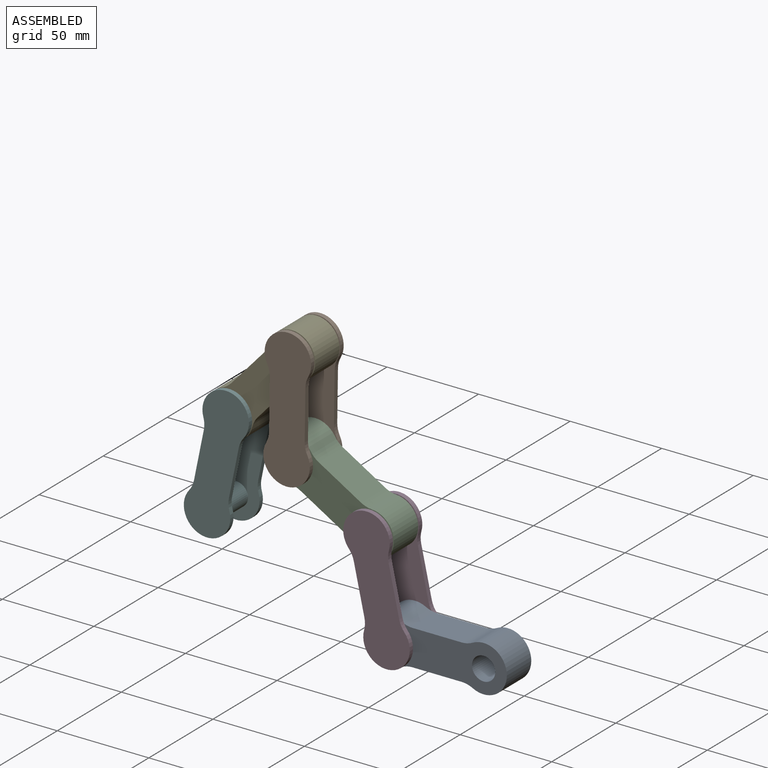
[diagram: assembled view]
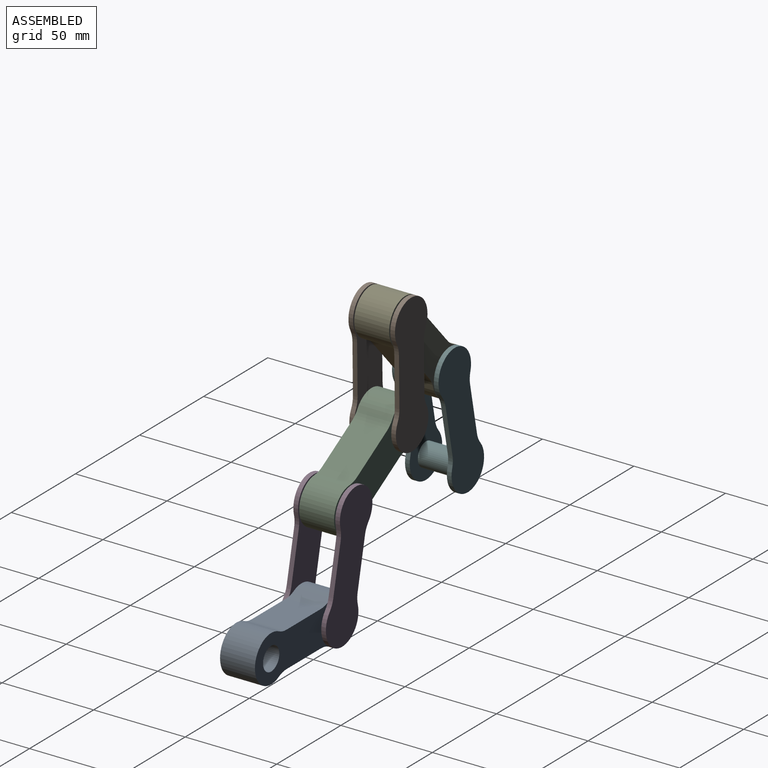
[diagram: assembled view, second angle]
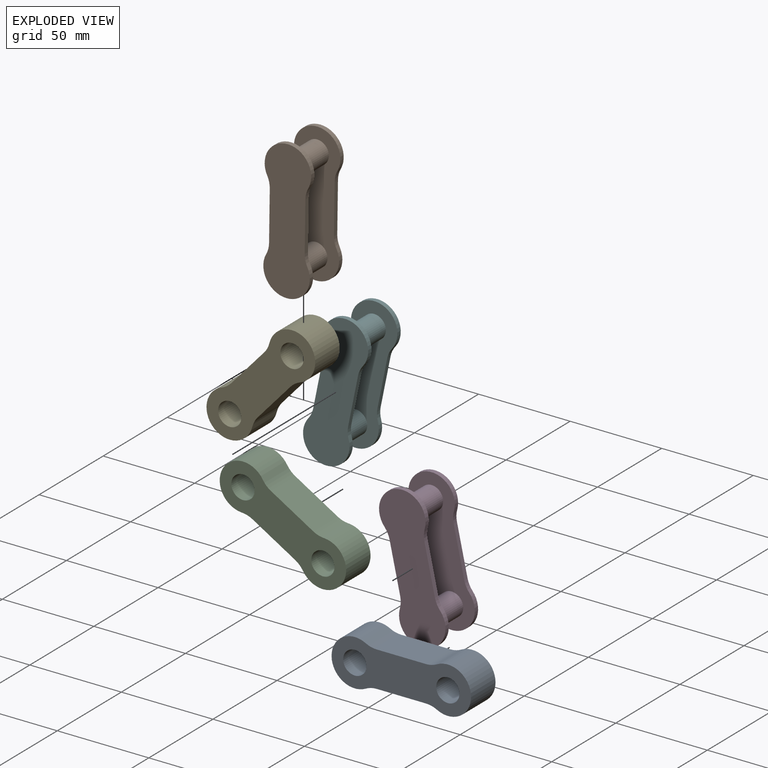
[diagram: exploded view]
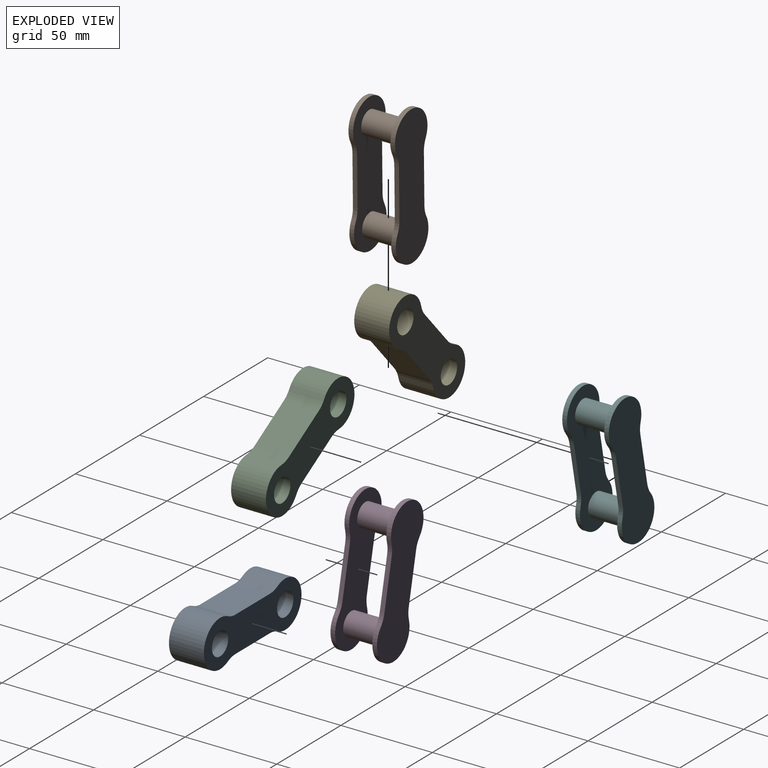
[diagram: exploded view, second angle]
ASSEMBLY  parts=6 mates=5
PART A: 12 faces, bbox 76.2x19.1x25.4 mm
  f0: cylinder r=12.7mm len=25.4mm, axis (0,1,0), area 996.4mm2, adj f1,f8,f10,f11
  f1: cylinder r=12.7mm len=19.05mm, axis (0,1,0), area 118.2mm2, adj f0,f2,f10,f11
  f2: plane 26.96x19.05mm, normal (0,0,-1), area 513.5mm2, adj f1,f3,f10,f11
  f3: cylinder r=12.7mm len=19.05mm, axis (0,1,0), area 118.2mm2, adj f2,f4,f10,f11
  f4: cylinder r=12.7mm len=25.4mm, axis (0,1,0), area 996.4mm2, adj f3,f5,f10,f11
  f5: cylinder r=12.7mm len=19.05mm, axis (0,1,0), area 118.2mm2, adj f4,f6,f10,f11
  f6: plane 26.96x19.05mm, normal (0,0,1), area 513.5mm2, adj f5,f8,f10,f11
  f7: cylinder r=6.35mm len=19.05mm, axis (0,1,0), area 760.1mm2, adj f10,f11
  f8: cylinder r=12.7mm len=19.05mm, axis (0,1,0), area 118.2mm2, adj f0,f6,f10,f11
  f9: cylinder r=6.35mm len=19.05mm, axis (0,1,0), area 760.1mm2, adj f10,f11
  f10: plane 76.2x25.4mm, normal (0,-1,0), area 1312.6mm2, adj f0,f1,f2,f3,f4,f5,f6,f7
  f11: plane 76.2x25.4mm, normal (0,1,0), area 1312.6mm2, adj f0,f1,f2,f3,f4,f5,f6,f7
PART B: 22 faces, bbox 76.2x25.4x25.4 mm
  f0: cylinder r=6.35mm len=20.32mm, axis (0,1,0), area 810.7mm2, adj f10,f20
  f1: cylinder r=6.35mm len=20.32mm, axis (0,1,0), area 810.7mm2, adj f10,f20
  f2: cylinder r=12.7mm len=5.96mm, axis (0,1,0), area 15.8mm2, adj f3,f9,f10,f11
  f3: cylinder r=12.7mm len=25.4mm, axis (0,1,0), area 132.9mm2, adj f2,f4,f10,f11
  f4: cylinder r=12.7mm len=5.96mm, axis (0,1,0), area 15.8mm2, adj f3,f5,f10,f11
  f5: plane 26.96x2.54mm, normal (0,0,1), area 68.5mm2, adj f4,f6,f10,f11
  f6: cylinder r=12.7mm len=5.96mm, axis (0,1,0), area 15.8mm2, adj f5,f7,f10,f11
  f7: cylinder r=12.7mm len=25.4mm, axis (0,1,0), area 132.9mm2, adj f6,f8,f10,f11
  f8: cylinder r=12.7mm len=5.96mm, axis (0,1,0), area 15.8mm2, adj f7,f9,f10,f11
  f9: plane 26.96x2.54mm, normal (0,0,-1), area 68.5mm2, adj f2,f8,f10,f11
  f10: plane 76.2x25.4mm, normal (0,1,0), area 1312.6mm2, adj f0,f1,f2,f3,f4,f5,f6,f7
  f11: plane 76.2x25.4mm, normal (0,-1,0), area 1566mm2, adj f2,f3,f4,f5,f6,f7,f8,f9
  f12: cylinder r=12.7mm len=5.96mm, axis (0,1,0), area 15.8mm2, adj f13,f19,f20,f21
  f13: cylinder r=12.7mm len=25.4mm, axis (0,1,0), area 132.9mm2, adj f12,f14,f20,f21
  f14: cylinder r=12.7mm len=5.96mm, axis (0,1,0), area 15.8mm2, adj f13,f15,f20,f21
  f15: plane 26.96x2.54mm, normal (0,0,1), area 68.5mm2, adj f14,f16,f20,f21
  f16: cylinder r=12.7mm len=5.96mm, axis (0,1,0), area 15.8mm2, adj f15,f17,f20,f21
  f17: cylinder r=12.7mm len=25.4mm, axis (0,1,0), area 132.9mm2, adj f16,f18,f20,f21
  f18: cylinder r=12.7mm len=5.96mm, axis (0,1,0), area 15.8mm2, adj f17,f19,f20,f21
  f19: plane 26.96x2.54mm, normal (0,0,-1), area 68.5mm2, adj f12,f18,f20,f21
  f20: plane 76.2x25.4mm, normal (0,-1,0), area 1312.6mm2, adj f0,f1,f12,f13,f14,f15,f16,f17
  f21: plane 76.2x25.4mm, normal (0,1,0), area 1566mm2, adj f12,f13,f14,f15,f16,f17,f18,f19
PART C: same geometry as A
PART D: same geometry as B
PART E: same geometry as A
PART F: same geometry as B
PLACE A t=(113.04,3.89,7.22)mm fixed
PLACE B rot(axis=(0,-1,0),89.2deg) t=(33.41,7.07,108.21)mm
PLACE C rot(axis=(0,1,0),30.7deg) t=(54.88,3.89,69.82)mm
PLACE D rot(axis=(0,1,0),77.6deg) t=(82.17,7.07,32.03)mm
PLACE E rot(axis=(0,-1,0),48deg) t=(16.79,3.89,114.72)mm
PLACE F rot(axis=(0,-1,0),78.5deg) t=(-5.29,7.07,70.95)mm
MATE revolute F.f0 <-> E.f7  axis (0,1,0) through (-0.2,-5.63,95.84)mm
MATE revolute D.f0 <-> A.f7  axis (0,1,0) through (87.64,-5.63,7.22)mm
MATE revolute B.f0 <-> E.f9  axis (0,1,0) through (33.78,-5.63,133.6)mm
MATE revolute C.f7 <-> B.f1  axis (0,1,0) through (33.05,-5.63,82.81)mm
MATE revolute C.f9 <-> D.f1  axis (0,1,0) through (76.71,-5.63,56.84)mm
